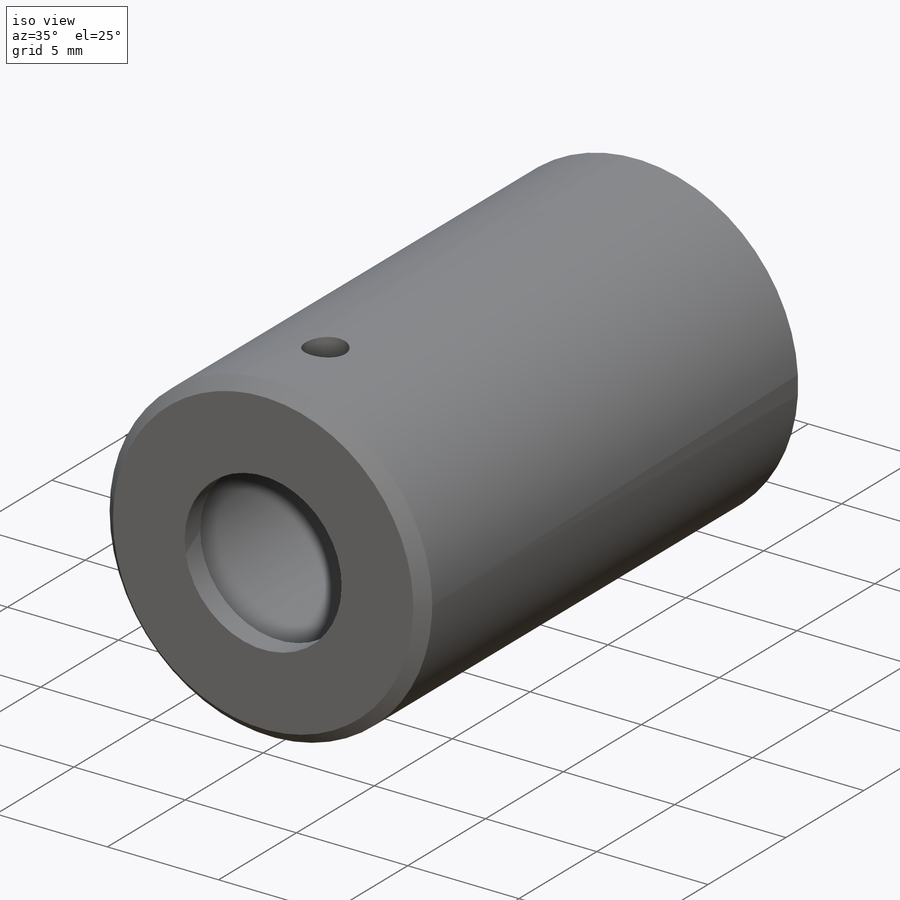
[diagram: iso view]
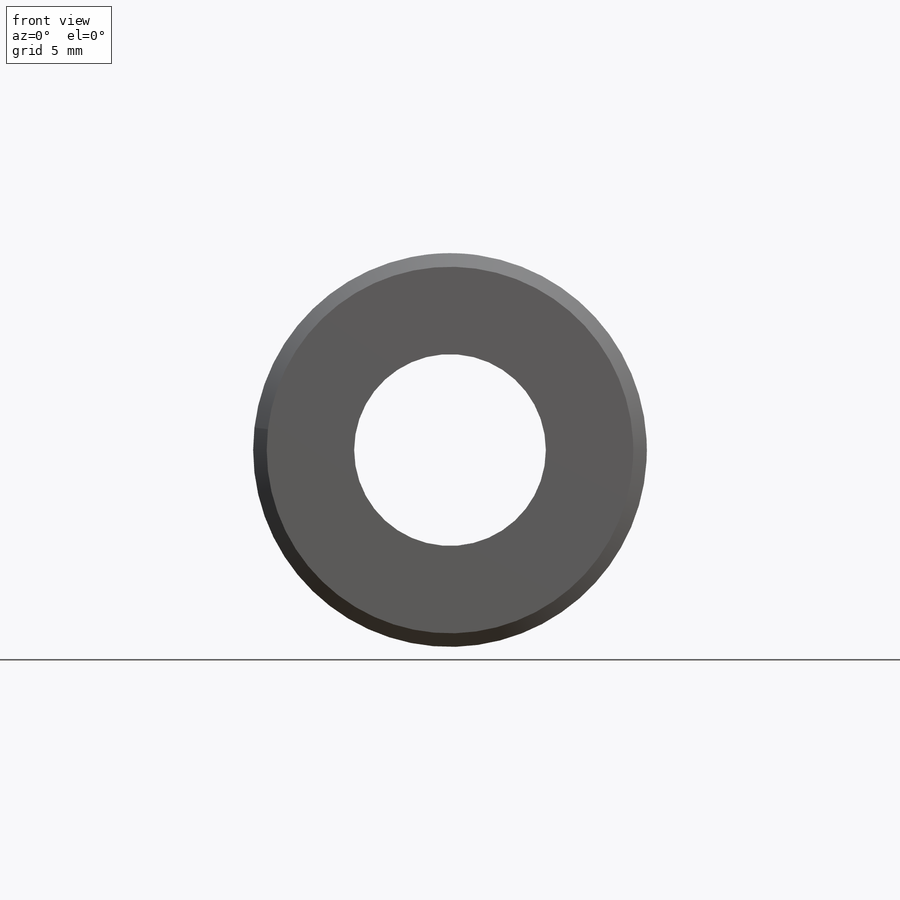
[diagram: front view]
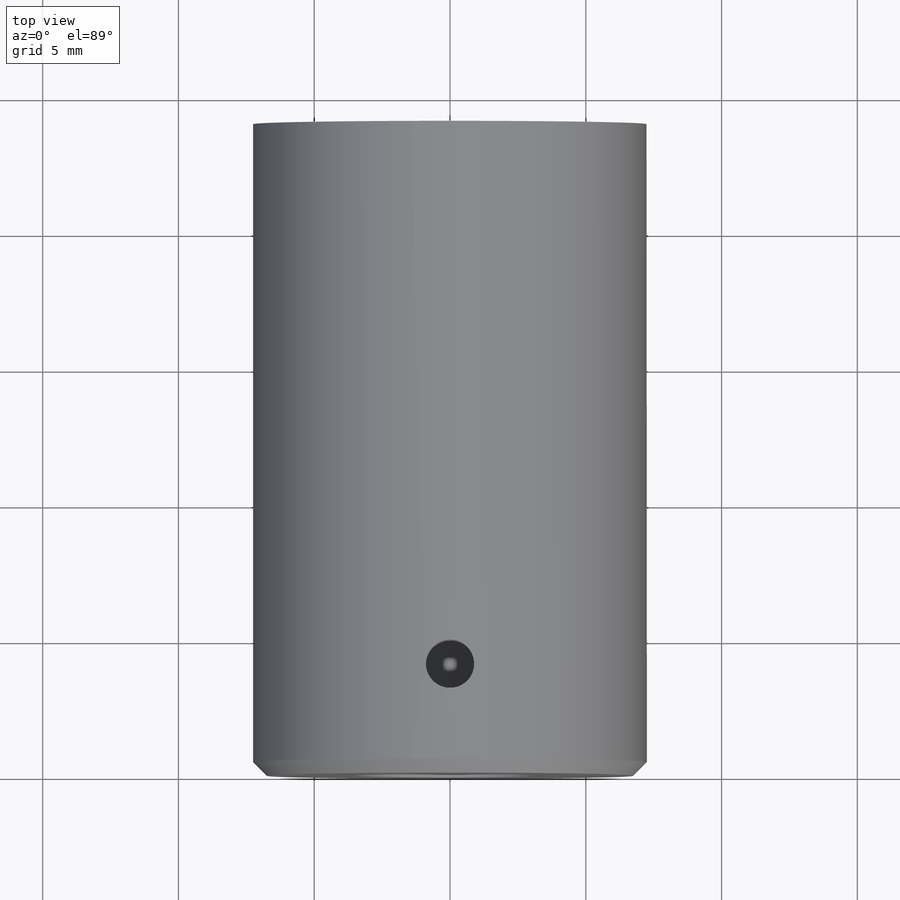
[diagram: top view]
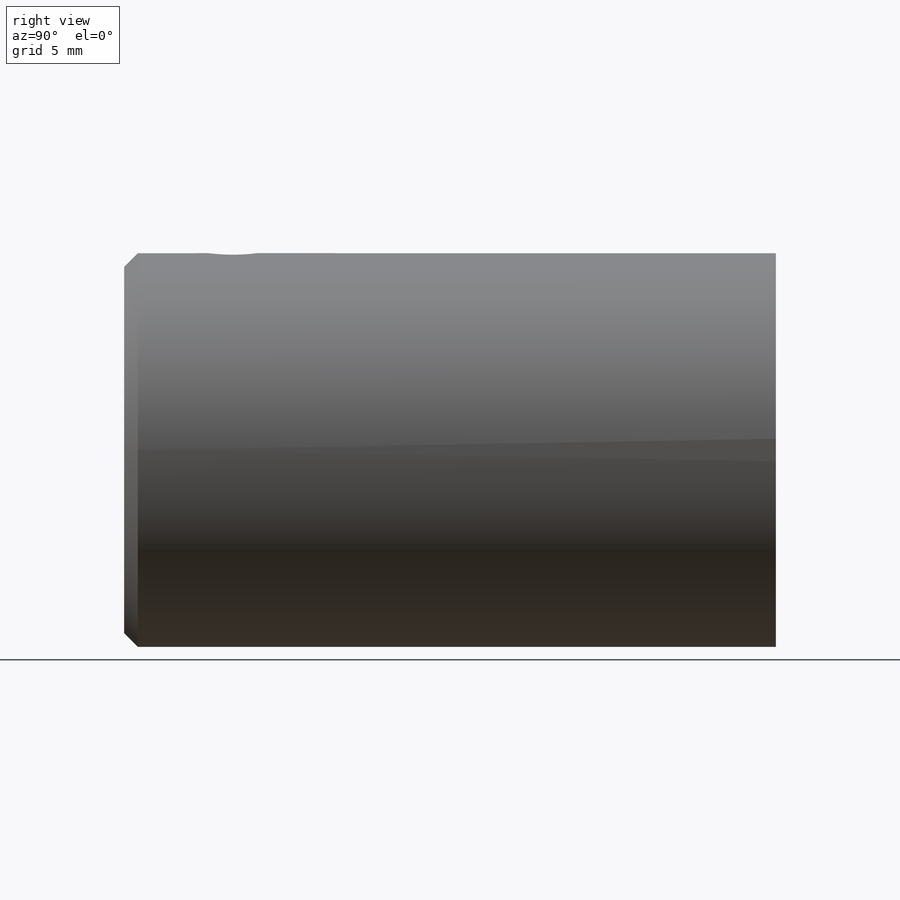
[diagram: right view]
SOLIDWORKS PART (.sldprt)
format: sldprt  version: not decoded by parser v0  size: 254,976 bytes
history: native  units: mm
features: sketch x4, material x1, revolve x1, plane x1, hole x1, thread x1, chamfer x1 (+11 scaffold rows collapsed)
feature tree (21):
  scaffold x11  (default folders/planes/origin — collapsed)
  material  "6061-T6 (SS)"
  sketch  "Sketch1"  dims[c1.D1=9.06mm c1.D2=1.0mm c1.D3=1.0mm c1.D4=6.0mm c1.D5=10.95mm c1.D6=2.0mm c1.D7=24.0mm c2.D6=14.5mm]
  revolve  "Revolve1"  Angle=360deg
  plane  "Plane1"  Offset=3mm
  sketch  "Sketch3"
  hole  "#2-56 Tapped Hole2"  Diameter=1.778mm Depth=2.72mm
  sketch  "3DSketch2"
  sketch  "Sketch4"  dims[hole-wizard template sketch: 60 standard entries collapsed; hole parameters kept: c18.Thru Tap Drill Depth=2.72mm]
  thread  "Hole Thread2"  Diameter=2.1844mm  [1 undecoded]
  chamfer  "Chamfer1"  Distance=0.5mm Angle=45deg
decode coverage: 6 of 8 modeling features carry decoded parameters
note: ~ marks probable driven/reference dimensions
note: 1 parameter value undecoded
note: suppression state not decoded; provenance and decode notes live in map.json
